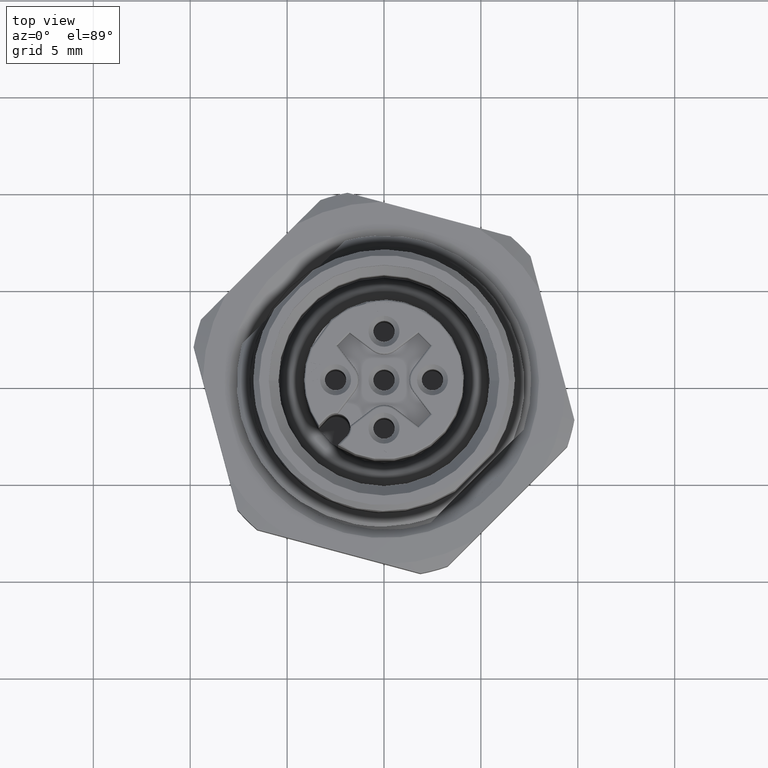
[diagram: clean part render]
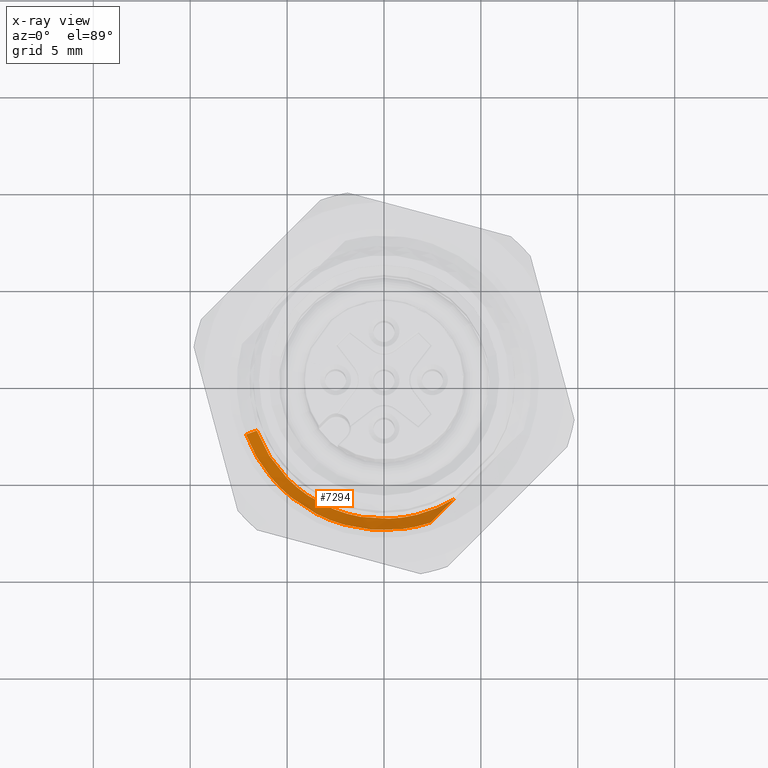
[diagram: x-ray — body ghosted, one internal face saturated and labeled with its STEP entity id]
A machine part, top view, then the same camera in x-ray: the body is ghosted and one INTERNAL B-rep face — a face not visible from any outside direction — is saturated and labeled: STEP entity #7294.
In plain terms, the highlighted face is a freeform B-spline surface patch.
Its self-contained STEP definition (entity closure, byte-faithful):
#234=CARTESIAN_POINT('',(2.408326112071E0,-7.208326112066E0,5.059859037932E0));
#235=CARTESIAN_POINT('',(2.549123086662E0,-7.067529137475E0,4.990503129965E0));
#236=CARTESIAN_POINT('',(2.827232175783E0,-6.789419965783E0,4.864448289654E0));
#237=CARTESIAN_POINT('',(3.231951344983E0,-6.384701168156E0,4.714367453359E0));
#238=CARTESIAN_POINT('',(3.497621431383E0,-6.119030173466E0,4.638959194955E0));
#239=CARTESIAN_POINT('',(3.629308369226E0,-5.987343235623E0,4.607538185339E0));
#471=CARTESIAN_POINT('',(-6.561272421728E0,-2.443444081771E0,4.212781746818E0));
#472=CARTESIAN_POINT('',(-6.476993273990E0,-2.669748391339E0,4.220521026869E0));
#473=CARTESIAN_POINT('',(-6.285023239504E0,-3.113576995694E0,4.236000719998E0));
#474=CARTESIAN_POINT('',(-5.929993544570E0,-3.745792811315E0,4.259208543009E0));
#475=CARTESIAN_POINT('',(-5.511581868556E0,-4.338006541581E0,4.282419119942E0));
#476=CARTESIAN_POINT('',(-5.034228413155E0,-4.883887284512E0,4.305626936471E0));
#477=CARTESIAN_POINT('',(-4.502971744712E0,-5.377648268936E0,4.328840553149E0));
#478=CARTESIAN_POINT('',(-3.923446082339E0,-5.814001284631E0,4.352067589632E0));
#479=CARTESIAN_POINT('',(-3.301823539104E0,-6.188212727755E0,4.375287140372E0));
#480=CARTESIAN_POINT('',(-2.644784115683E0,-6.496236144129E0,4.398510156064E0));
#481=CARTESIAN_POINT('',(-1.959429852466E0,-6.734742244949E0,4.421747493299E0));
#482=CARTESIAN_POINT('',(-1.253117176577E0,-6.901139966454E0,4.444969722571E0));
#483=CARTESIAN_POINT('',(-5.333821367551E-1,-6.993672850992E0,
4.468192085910E0));
#484=CARTESIAN_POINT('',(1.920646587154E-1,-7.011364374435E0,4.491429273906E0));
#485=CARTESIAN_POINT('',(9.154497085517E-1,-6.953990452719E0,4.514652202832E0));
#486=CARTESIAN_POINT('',(1.629024356961E0,-6.822189299880E0,4.537874562104E0));
#487=CARTESIAN_POINT('',(2.325206823378E0,-6.617357740359E0,4.561108389610E0));
#488=CARTESIAN_POINT('',(2.996419894129E0,-6.341753358451E0,4.584345443130E0));
#489=CARTESIAN_POINT('',(3.422722214322E0,-6.112563595353E0,4.599795799743E0));
#490=CARTESIAN_POINT('',(3.629308369226E0,-5.987343235623E0,4.607538185339E0));
#492=CARTESIAN_POINT('',(2.408326112071E0,-7.208326112066E0,5.059859037932E0));
#493=CARTESIAN_POINT('',(2.162110626843E0,-7.290587537680E0,5.052193896343E0));
#494=CARTESIAN_POINT('',(1.661289020604E0,-7.429841287380E0,5.036865038863E0));
#495=CARTESIAN_POINT('',(8.928524780917E-1,-7.560763532833E0,5.013878284748E0));
#496=CARTESIAN_POINT('',(1.150491840742E-1,-7.612439846424E0,4.990891297712E0));
#497=CARTESIAN_POINT('',(-6.643009805883E-1,-7.584275314051E0,
4.967894263148E0));
#498=CARTESIAN_POINT('',(-1.436475830754E0,-7.476558210369E0,4.944903345532E0));
#499=CARTESIAN_POINT('',(-2.193440052122E0,-7.290484506532E0,4.921916902679E0));
#500=CARTESIAN_POINT('',(-2.927472092411E0,-7.027974024410E0,4.898928670702E0));
#501=CARTESIAN_POINT('',(-3.631109134690E0,-6.691603521565E0,4.875930304992E0));
#502=CARTESIAN_POINT('',(-4.296351793732E0,-6.285197322436E0,4.852942092029E0));
#503=CARTESIAN_POINT('',(-4.916509912034E0,-5.812943705646E0,4.829955623899E0));
#504=CARTESIAN_POINT('',(-5.485236482770E0,-5.279650459867E0,4.806964808319E0));
#505=CARTESIAN_POINT('',(-5.996562938205E0,-4.690811260091E0,4.783967651901E0));
#506=CARTESIAN_POINT('',(-6.444777510510E0,-4.053044684326E0,4.760980776635E0));
#507=CARTESIAN_POINT('',(-6.825439493127E0,-3.372802797419E0,4.737994074728E0));
#508=CARTESIAN_POINT('',(-7.031565886230E0,-2.895595072371E0,4.722665177318E0));
#509=CARTESIAN_POINT('',(-7.122161910437E0,-2.652321572034E0,4.714999999998E0));
#2442=DIRECTION('',(7.178806589791E-1,2.673416303468E-1,-6.427875326632E-1));
#2443=VECTOR('',#2442,7.813129963793E-1);
#2444=CARTESIAN_POINT('',(-7.122161910437E0,-2.652321572034E0,
4.714999999998E0));
#2445=LINE('',#2444,#2443);
#6275=VERTEX_POINT('',#471);
#6276=VERTEX_POINT('',#490);
#6313=CARTESIAN_POINT('',(-7.122161910437E0,-2.652321572034E0,
4.714999999998E0));
#6314=VERTEX_POINT('',#6313);
#6403=VERTEX_POINT('',#234);
#7257=CARTESIAN_POINT('',(3.939443534170E0,-6.499291087577E0,5.109784179127E0));
#7258=CARTESIAN_POINT('',(2.986635878082E0,-7.076820530328E0,5.076885497533E0));
#7259=CARTESIAN_POINT('',(8.235990420031E-1,-7.805598670968E0,
5.011088134345E0));
#7260=CARTESIAN_POINT('',(-2.578242036897E0,-7.413496789525E0,
4.912392089563E0));
#7261=CARTESIAN_POINT('',(-5.489276909496E0,-5.610127004362E0,
4.813696044781E0));
#7262=CARTESIAN_POINT('',(-6.733326841168E0,-3.696443200798E0,
4.747898681593E0));
#7263=CARTESIAN_POINT('',(-7.122161910438E0,-2.652321572035E0,
4.714999999999E0));
#7264=CARTESIAN_POINT('',(3.836028465244E0,-6.328676981812E0,4.942376232965E0));
#7265=CARTESIAN_POINT('',(2.908233141119E0,-6.891045591158E0,4.909477551371E0));
#7266=CARTESIAN_POINT('',(8.019785895312E-1,-7.600692440540E0,
4.843680188183E0));
#7267=CARTESIAN_POINT('',(-2.510560123032E0,-7.218883698914E0,
4.744984143401E0));
#7268=CARTESIAN_POINT('',(-5.345176874802E0,-5.462854511227E0,
4.646288098619E0));
#7269=CARTESIAN_POINT('',(-6.556569019069E0,-3.599407179066E0,
4.580490735431E0));
#7270=CARTESIAN_POINT('',(-6.935196706220E0,-2.582694982440E0,
4.547592053837E0));
#7271=CARTESIAN_POINT('',(3.732613396317E0,-6.158062876048E0,4.774968286803E0));
#7272=CARTESIAN_POINT('',(2.829830404156E0,-6.705270651989E0,4.742069605209E0));
#7273=CARTESIAN_POINT('',(7.803581370590E-1,-7.395786210112E0,
4.676272242021E0));
#7274=CARTESIAN_POINT('',(-2.442878209168E0,-7.024270608302E0,
4.577576197239E0));
#7275=CARTESIAN_POINT('',(-5.201076840107E0,-5.315582018092E0,
4.478880152457E0));
#7276=CARTESIAN_POINT('',(-6.379811196970E0,-3.502371157335E0,
4.413082789269E0));
#7277=CARTESIAN_POINT('',(-6.748231502002E0,-2.513068392845E0,
4.380184107675E0));
#7278=CARTESIAN_POINT('',(3.629198327391E0,-5.987448770283E0,4.607560340641E0));
#7279=CARTESIAN_POINT('',(2.751427667193E0,-6.519495712819E0,4.574661659047E0));
#7280=CARTESIAN_POINT('',(7.587376845871E-1,-7.190879979685E0,
4.508864295859E0));
#7281=CARTESIAN_POINT('',(-2.375196295303E0,-6.829657517691E0,
4.410168251077E0));
#7282=CARTESIAN_POINT('',(-5.056976805413E0,-5.168309524957E0,
4.311472206295E0));
#7283=CARTESIAN_POINT('',(-6.203053374871E0,-3.405335135603E0,
4.245674843107E0));
#7284=CARTESIAN_POINT('',(-6.561266297783E0,-2.443441803249E0,
4.212776161513E0));
#7285=B_SPLINE_SURFACE_WITH_KNOTS('',3,3,((#7257,#7258,#7259,#7260,#7261,#7262,
#7263),(#7264,#7265,#7266,#7267,#7268,#7269,#7270),(#7271,#7272,#7273,#7274,
#7275,#7276,#7277),(#7278,#7279,#7280,#7281,#7282,#7283,#7284)),.UNSPECIFIED.,
.F.,.F.,.F.,(4,4),(4,1,1,1,4),(2.173670285586E-12,8.933239758257E-1),(
9.289956512358E-1,9.467467384268E-1,9.644978256179E-1,9.822489128089E-1,1.E0),
.UNSPECIFIED.);
#7287=ORIENTED_EDGE('',*,*,#7286,.F.);
#7289=ORIENTED_EDGE('',*,*,#7288,.F.);
#7290=ORIENTED_EDGE('',*,*,#7241,.F.);
#7291=ORIENTED_EDGE('',*,*,#6802,.T.);
#7292=EDGE_LOOP('',(#7287,#7289,#7290,#7291));
#7293=FACE_OUTER_BOUND('',#7292,.F.);
#240=B_SPLINE_CURVE_WITH_KNOTS('',3,(#234,#235,#236,#237,#238,#239),
.UNSPECIFIED.,.F.,.F.,(4,1,1,4),(0.E0,3.333333333333E-1,6.666666666667E-1,1.E0),
.UNSPECIFIED.);
#491=B_SPLINE_CURVE_WITH_KNOTS('',3,(#471,#472,#473,#474,#475,#476,#477,#478,
#479,#480,#481,#482,#483,#484,#485,#486,#487,#488,#489,#490),.UNSPECIFIED.,.F.,
.F.,(4,1,1,1,1,1,1,1,1,1,1,1,1,1,1,1,1,4),(0.E0,5.882352941176E-2,
1.176470588235E-1,1.764705882353E-1,2.352941176471E-1,2.941176470588E-1,
3.529411764706E-1,4.117647058824E-1,4.705882352941E-1,5.294117647059E-1,
5.882352941176E-1,6.470588235294E-1,7.058823529412E-1,7.647058823529E-1,
8.235294117647E-1,8.823529411765E-1,9.411764705882E-1,1.E0),.UNSPECIFIED.);
#510=B_SPLINE_CURVE_WITH_KNOTS('',3,(#492,#493,#494,#495,#496,#497,#498,#499,
#500,#501,#502,#503,#504,#505,#506,#507,#508,#509),.UNSPECIFIED.,.F.,.F.,(4,1,1,
1,1,1,1,1,1,1,1,1,1,1,1,4),(0.E0,6.666666666667E-2,1.333333333333E-1,2.E-1,
2.666666666667E-1,3.333333333333E-1,4.E-1,4.666666666667E-1,5.333333333333E-1,
6.E-1,6.666666666667E-1,7.333333333333E-1,8.E-1,8.666666666667E-1,
9.333333333333E-1,1.E0),.UNSPECIFIED.);
#6802=EDGE_CURVE('',#6403,#6276,#240,.T.);
#7241=EDGE_CURVE('',#6403,#6314,#510,.T.);
#7286=EDGE_CURVE('',#6275,#6276,#491,.T.);
#7288=EDGE_CURVE('',#6314,#6275,#2445,.T.);
#7294=ADVANCED_FACE('',(#7293),#7285,.F.);